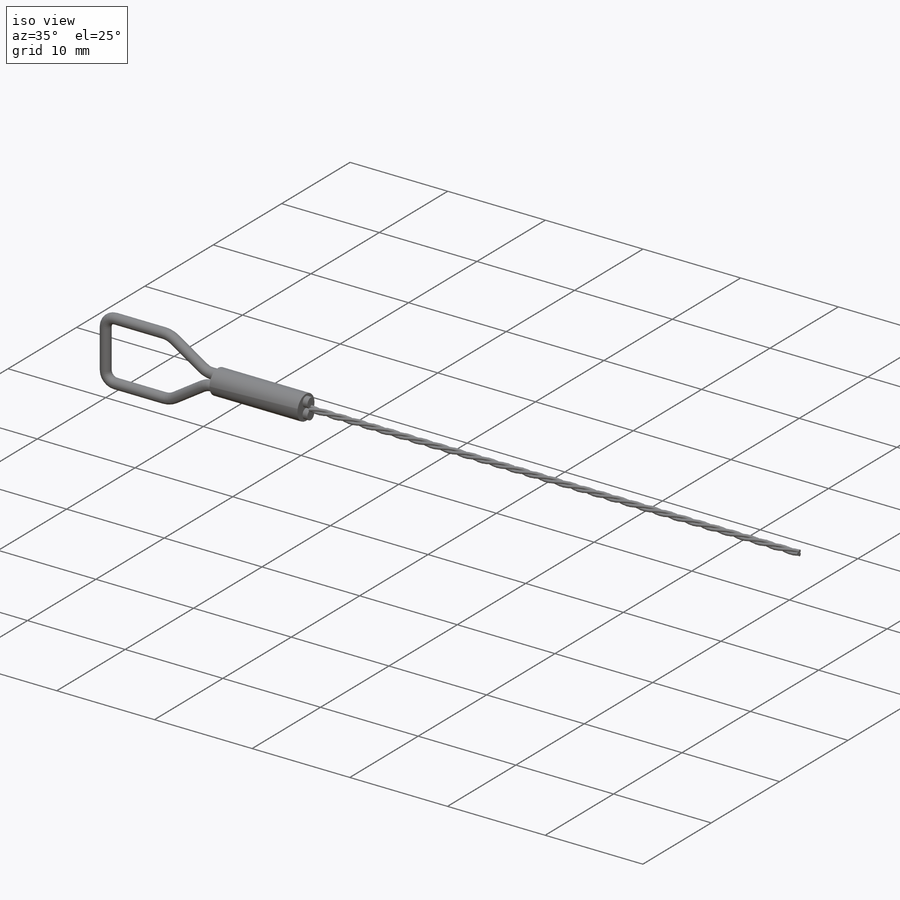
[diagram: iso view]
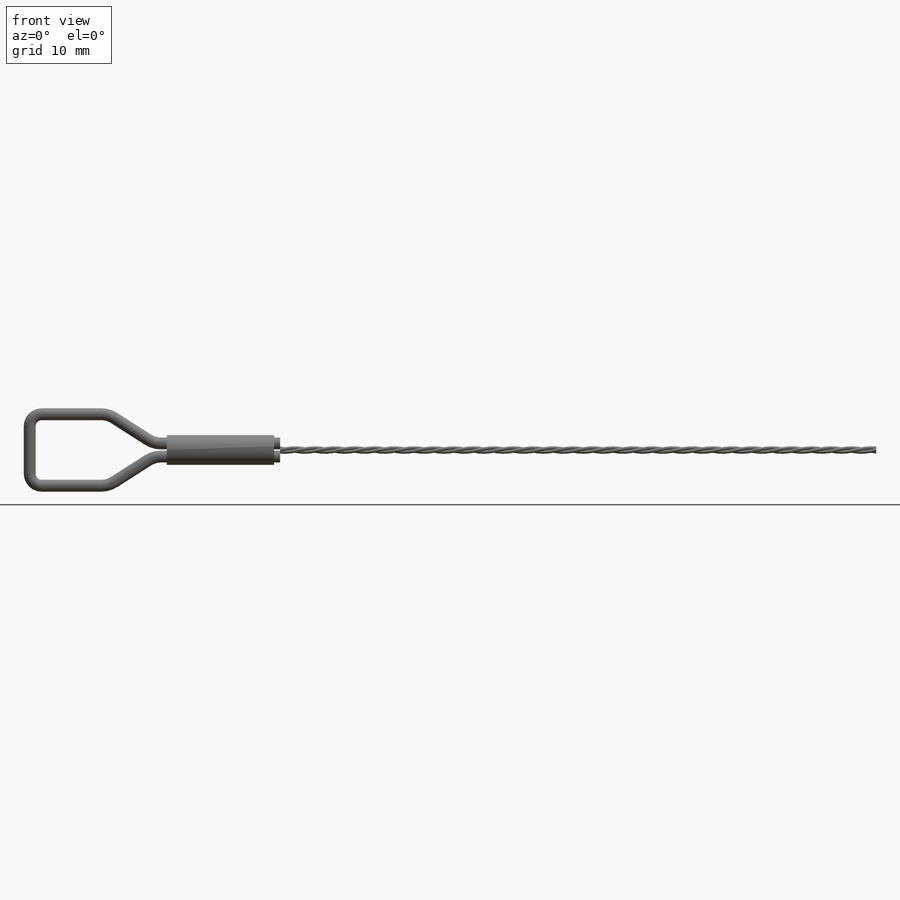
[diagram: front view]
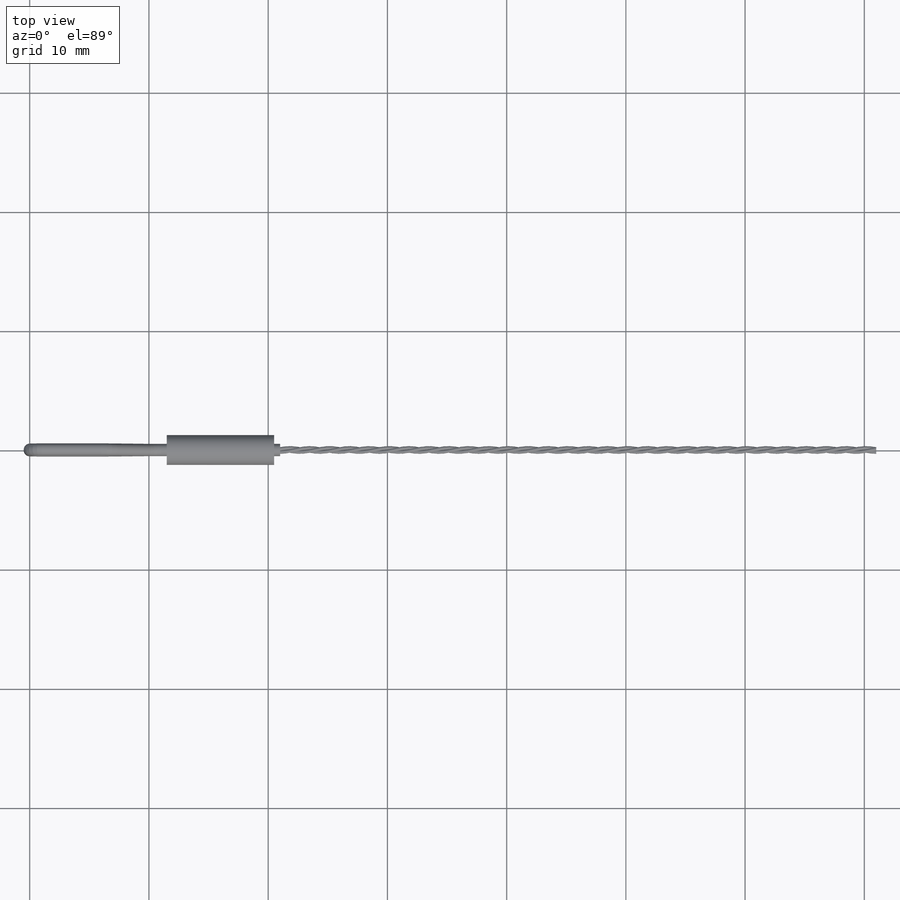
[diagram: top view]
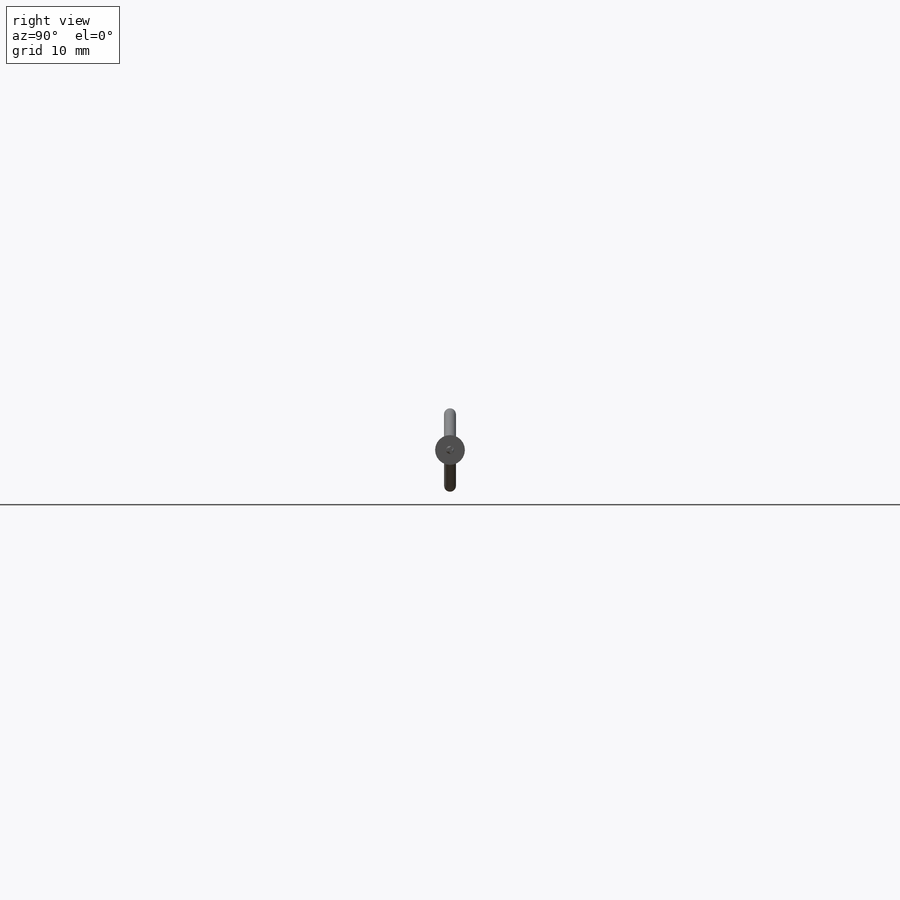
[diagram: right view]
SOLIDWORKS PART (.sldprt)
format: sldprt  version: not decoded by parser v0  size: 348,672 bytes
history: native  units: mm
features: sketch x5, sweep x2, material x1, plane x1, revolve x1, helix x1 (+15 scaffold rows collapsed)
feature tree (26):
  scaffold x15  (default folders/planes/origin — collapsed)
  material  "Material <not specified>"
  sketch  "Sketch1"  dims[D1=1.0mm D2=2.0mm D3=2.0mm D4=6.0mm D5=6.0mm D6=1.1mm D7=11.0mm D8=10.0mm]
  plane  "Plane1"
  sketch  "Sketch2"  dims[D1=1.0mm]
  sweep  "Sweep1"
  sketch  "Sketch3"  dims[D1=2.5mm D2=11.5mm D3=9.0mm]
  revolve  "Revolve1"  Angle=360deg
  sketch  "Sketch4"  dims[D1=0.3mm D2=0.35mm]
  sketch  "Sketch5"
  helix  "Helix/Spiral1"  Pitch=50mm
  sweep  "Sweep2"
decode coverage: 6 of 9 modeling features carry decoded parameters
note: suppression state not decoded; provenance and decode notes live in map.json
